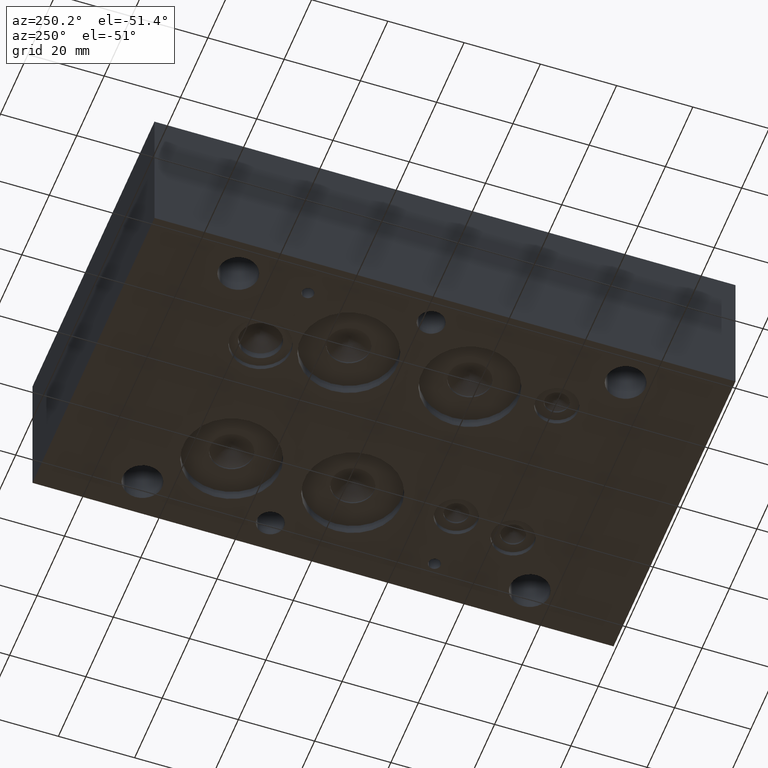
[diagram: clean part render]
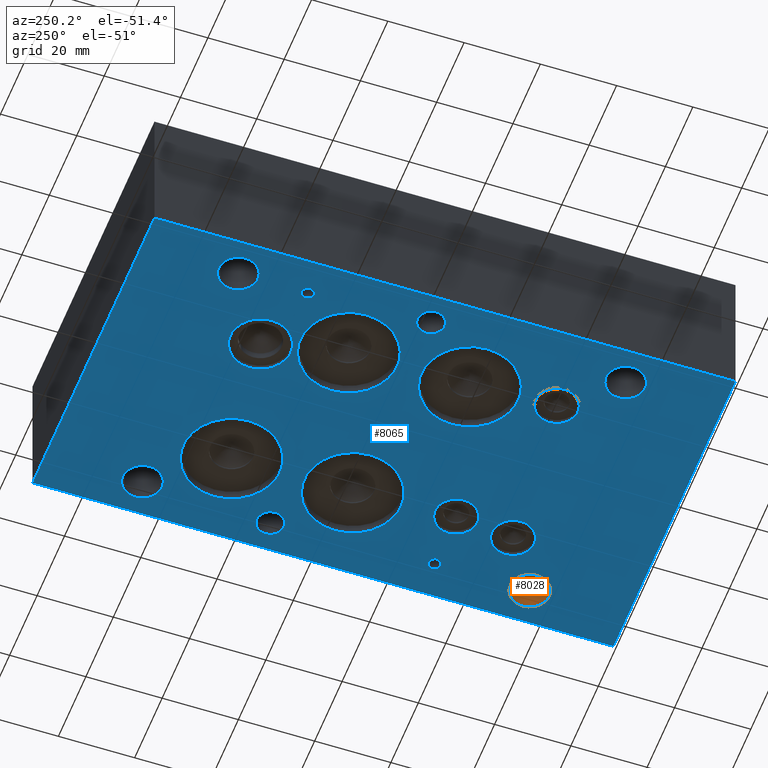
[diagram: same view with the hole feature highlighted: cylindrical wall and planar end face, labeled with their STEP entity ids]
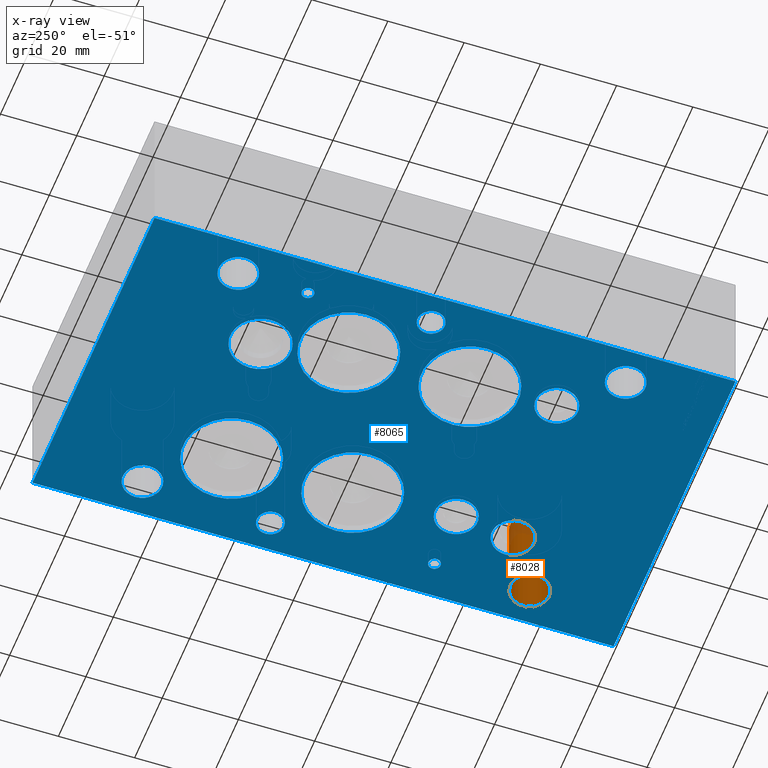
[diagram: x-ray of the same camera — body ghosted, the hole faces saturated]
A machine part, auxiliary view. The highlighted faces form one hole feature of diameter 10.3124 mm: the cylindrical wall (entity #8028, orange) and its adjacent planar end face (entity #8065, blue) — they share a circular edge in the B-rep.
The next image is the same camera in x-ray (body ghosted, the hole faces saturated) — the bore reads through the body.
Wall:
#61=CYLINDRICAL_SURFACE('',#8449,5.1562);
#131=CIRCLE('',#8446,5.1562);
#133=CIRCLE('',#8450,5.1562);
#859=FACE_OUTER_BOUND('',#1328,.T.);
#1328=EDGE_LOOP('',(#6863,#6864,#6865,#6866));
#2206=LINE('',#13283,#3044);
#3044=VECTOR('',#10059,5.1562);
#3754=VERTEX_POINT('',#13275);
#3756=VERTEX_POINT('',#13282);
#4808=EDGE_CURVE('',#3754,#3754,#131,.T.);
#4811=EDGE_CURVE('',#3754,#3756,#2206,.T.);
#4812=EDGE_CURVE('',#3756,#3756,#133,.T.);
#6863=ORIENTED_EDGE('',*,*,#4808,.T.);
#6864=ORIENTED_EDGE('',*,*,#4811,.T.);
#6865=ORIENTED_EDGE('',*,*,#4812,.F.);
#6866=ORIENTED_EDGE('',*,*,#4811,.F.);
#8028=ADVANCED_FACE('',(#859),#61,.F.);
#8446=AXIS2_PLACEMENT_3D('',#13276,#10050,#10051);
#8449=AXIS2_PLACEMENT_3D('',#13281,#10057,#10058);
#8450=AXIS2_PLACEMENT_3D('',#13284,#10060,#10061);
#10050=DIRECTION('center_axis',(0.,0.,1.));
#10051=DIRECTION('ref_axis',(1.,0.,0.));
#10057=DIRECTION('center_axis',(0.,0.,1.));
#10058=DIRECTION('ref_axis',(1.,0.,0.));
#10059=DIRECTION('',(0.,0.,-1.));
#10060=DIRECTION('center_axis',(0.,0.,1.));
#10061=DIRECTION('ref_axis',(1.,0.,0.));
#13275=CARTESIAN_POINT('',(74.1934,25.4,23.876));
#13276=CARTESIAN_POINT('Origin',(79.3496,25.4,23.876));
#13281=CARTESIAN_POINT('Origin',(79.3496,25.4,-142.400914125109));
#13282=CARTESIAN_POINT('',(74.1934,25.4,0.));
#13283=CARTESIAN_POINT('',(74.1934,25.4,-142.400914125109));
#13284=CARTESIAN_POINT('Origin',(79.3496,25.4,0.));
End face:
#84=CIRCLE('',#8355,7.9375);
#93=CIRCLE('',#8372,5.5626);
#95=CIRCLE('',#8376,5.5626);
#97=CIRCLE('',#8380,5.5626);
#108=CIRCLE('',#8403,12.7);
#110=CIRCLE('',#8407,12.7);
#112=CIRCLE('',#8411,12.7);
#114=CIRCLE('',#8415,12.7);
#117=CIRCLE('',#8421,1.5875);
#119=CIRCLE('',#8425,1.5875);
#120=CIRCLE('',#8427,3.5687);
#121=CIRCLE('',#8429,3.5687);
#125=CIRCLE('',#8436,5.1562);
#129=CIRCLE('',#8443,5.1562);
#133=CIRCLE('',#8450,5.1562);
#137=CIRCLE('',#8457,5.1562);
#457=FACE_BOUND('',#1387,.T.);
#458=FACE_BOUND('',#1388,.T.);
#459=FACE_BOUND('',#1389,.T.);
#460=FACE_BOUND('',#1390,.T.);
#461=FACE_BOUND('',#1391,.T.);
#462=FACE_BOUND('',#1392,.T.);
#463=FACE_BOUND('',#1393,.T.);
#464=FACE_BOUND('',#1394,.T.);
#465=FACE_BOUND('',#1395,.T.);
#466=FACE_BOUND('',#1396,.T.);
#467=FACE_BOUND('',#1397,.T.);
#468=FACE_BOUND('',#1398,.T.);
#469=FACE_BOUND('',#1399,.T.);
#470=FACE_BOUND('',#1400,.T.);
#471=FACE_BOUND('',#1401,.T.);
#472=FACE_BOUND('',#1402,.T.);
#896=FACE_OUTER_BOUND('',#1386,.T.);
#1386=EDGE_LOOP('',(#7011,#7012,#7013,#7014));
#1387=EDGE_LOOP('',(#7015));
#1388=EDGE_LOOP('',(#7016));
#1389=EDGE_LOOP('',(#7017));
#1390=EDGE_LOOP('',(#7018));
#1391=EDGE_LOOP('',(#7019));
#1392=EDGE_LOOP('',(#7020));
#1393=EDGE_LOOP('',(#7021));
#1394=EDGE_LOOP('',(#7022));
#1395=EDGE_LOOP('',(#7023));
#1396=EDGE_LOOP('',(#7024));
#1397=EDGE_LOOP('',(#7025));
#1398=EDGE_LOOP('',(#7026));
#1399=EDGE_LOOP('',(#7027));
#1400=EDGE_LOOP('',(#7028));
#1401=EDGE_LOOP('',(#7029));
#1402=EDGE_LOOP('',(#7030));
#1780=LINE('',#11137,#2618);
#2233=LINE('',#13418,#3071);
#2236=LINE('',#13424,#3074);
#2239=LINE('',#13429,#3077);
#2618=VECTOR('',#9165,10.);
#3071=VECTOR('',#10216,10.);
#3074=VECTOR('',#10221,10.);
#3077=VECTOR('',#10226,10.);
#3341=VERTEX_POINT('',#11135);
#3342=VERTEX_POINT('',#11136);
#3697=VERTEX_POINT('',#13093);
#3709=VERTEX_POINT('',#13129);
#3711=VERTEX_POINT('',#13136);
#3713=VERTEX_POINT('',#13143);
#3729=VERTEX_POINT('',#13193);
#3731=VERTEX_POINT('',#13200);
#3733=VERTEX_POINT('',#13207);
#3735=VERTEX_POINT('',#13214);
#3739=VERTEX_POINT('',#13226);
#3742=VERTEX_POINT('',#13235);
#3743=VERTEX_POINT('',#13239);
#3744=VERTEX_POINT('',#13243);
#3748=VERTEX_POINT('',#13256);
#3752=VERTEX_POINT('',#13269);
#3756=VERTEX_POINT('',#13282);
#3760=VERTEX_POINT('',#13295);
#3799=VERTEX_POINT('',#13417);
#3801=VERTEX_POINT('',#13423);
#4196=EDGE_CURVE('',#3341,#3342,#1780,.T.);
#4727=EDGE_CURVE('',#3697,#3697,#84,.T.);
#4743=EDGE_CURVE('',#3709,#3709,#93,.T.);
#4746=EDGE_CURVE('',#3711,#3711,#95,.T.);
#4749=EDGE_CURVE('',#3713,#3713,#97,.T.);
#4771=EDGE_CURVE('',#3729,#3729,#108,.T.);
#4774=EDGE_CURVE('',#3731,#3731,#110,.T.);
#4777=EDGE_CURVE('',#3733,#3733,#112,.T.);
#4780=EDGE_CURVE('',#3735,#3735,#114,.T.);
#4785=EDGE_CURVE('',#3739,#3739,#117,.T.);
#4789=EDGE_CURVE('',#3742,#3742,#119,.T.);
#4791=EDGE_CURVE('',#3743,#3743,#120,.T.);
#4793=EDGE_CURVE('',#3744,#3744,#121,.T.);
#4800=EDGE_CURVE('',#3748,#3748,#125,.T.);
#4806=EDGE_CURVE('',#3752,#3752,#129,.T.);
#4812=EDGE_CURVE('',#3756,#3756,#133,.T.);
#4818=EDGE_CURVE('',#3760,#3760,#137,.T.);
#4871=EDGE_CURVE('',#3799,#3341,#2233,.T.);
#4874=EDGE_CURVE('',#3801,#3799,#2236,.T.);
#4877=EDGE_CURVE('',#3342,#3801,#2239,.T.);
#7011=ORIENTED_EDGE('',*,*,#4196,.F.);
#7012=ORIENTED_EDGE('',*,*,#4871,.F.);
#7013=ORIENTED_EDGE('',*,*,#4874,.F.);
#7014=ORIENTED_EDGE('',*,*,#4877,.F.);
#7015=ORIENTED_EDGE('',*,*,#4727,.T.);
#7016=ORIENTED_EDGE('',*,*,#4743,.T.);
#7017=ORIENTED_EDGE('',*,*,#4746,.T.);
#7018=ORIENTED_EDGE('',*,*,#4749,.T.);
#7019=ORIENTED_EDGE('',*,*,#4771,.T.);
#7020=ORIENTED_EDGE('',*,*,#4774,.T.);
#7021=ORIENTED_EDGE('',*,*,#4777,.T.);
#7022=ORIENTED_EDGE('',*,*,#4780,.T.);
#7023=ORIENTED_EDGE('',*,*,#4785,.T.);
#7024=ORIENTED_EDGE('',*,*,#4789,.T.);
#7025=ORIENTED_EDGE('',*,*,#4791,.T.);
#7026=ORIENTED_EDGE('',*,*,#4793,.T.);
#7027=ORIENTED_EDGE('',*,*,#4800,.T.);
#7028=ORIENTED_EDGE('',*,*,#4806,.T.);
#7029=ORIENTED_EDGE('',*,*,#4812,.T.);
#7030=ORIENTED_EDGE('',*,*,#4818,.T.);
#7315=PLANE('',#8519);
#8065=ADVANCED_FACE('',(#896,#457,#458,#459,#460,#461,#462,#463,#464,#465,
#466,#467,#468,#469,#470,#471,#472),#7315,.F.);
#8355=AXIS2_PLACEMENT_3D('',#13094,#9834,#9835);
#8372=AXIS2_PLACEMENT_3D('',#13130,#9875,#9876);
#8376=AXIS2_PLACEMENT_3D('',#13137,#9884,#9885);
#8380=AXIS2_PLACEMENT_3D('',#13144,#9893,#9894);
#8403=AXIS2_PLACEMENT_3D('',#13194,#9950,#9951);
#8407=AXIS2_PLACEMENT_3D('',#13201,#9959,#9960);
#8411=AXIS2_PLACEMENT_3D('',#13208,#9968,#9969);
#8415=AXIS2_PLACEMENT_3D('',#13215,#9977,#9978);
#8421=AXIS2_PLACEMENT_3D('',#13227,#9991,#9992);
#8425=AXIS2_PLACEMENT_3D('',#13236,#10001,#10002);
#8427=AXIS2_PLACEMENT_3D('',#13240,#10006,#10007);
#8429=AXIS2_PLACEMENT_3D('',#13244,#10011,#10012);
#8436=AXIS2_PLACEMENT_3D('',#13258,#10028,#10029);
#8443=AXIS2_PLACEMENT_3D('',#13271,#10044,#10045);
#8450=AXIS2_PLACEMENT_3D('',#13284,#10060,#10061);
#8457=AXIS2_PLACEMENT_3D('',#13297,#10076,#10077);
#8519=AXIS2_PLACEMENT_3D('',#13433,#10232,#10233);
#9165=DIRECTION('',(1.,0.,0.));
#9834=DIRECTION('center_axis',(0.,0.,1.));
#9835=DIRECTION('ref_axis',(1.,0.,0.));
#9875=DIRECTION('center_axis',(0.,0.,1.));
#9876=DIRECTION('ref_axis',(1.,0.,0.));
#9884=DIRECTION('center_axis',(0.,0.,1.));
#9885=DIRECTION('ref_axis',(1.,0.,0.));
#9893=DIRECTION('center_axis',(0.,0.,1.));
#9894=DIRECTION('ref_axis',(1.,0.,0.));
#9950=DIRECTION('center_axis',(0.,0.,1.));
#9951=DIRECTION('ref_axis',(1.,0.,0.));
#9959=DIRECTION('center_axis',(0.,0.,1.));
#9960=DIRECTION('ref_axis',(1.,0.,0.));
#9968=DIRECTION('center_axis',(0.,0.,1.));
#9969=DIRECTION('ref_axis',(1.,0.,0.));
#9977=DIRECTION('center_axis',(0.,0.,1.));
#9978=DIRECTION('ref_axis',(1.,0.,0.));
#9991=DIRECTION('center_axis',(0.,0.,1.));
#9992=DIRECTION('ref_axis',(1.,0.,0.));
#10001=DIRECTION('center_axis',(0.,0.,1.));
#10002=DIRECTION('ref_axis',(1.,0.,0.));
#10006=DIRECTION('center_axis',(0.,0.,1.));
#10007=DIRECTION('ref_axis',(1.,0.,0.));
#10011=DIRECTION('center_axis',(0.,0.,1.));
#10012=DIRECTION('ref_axis',(1.,0.,0.));
#10028=DIRECTION('center_axis',(0.,0.,1.));
#10029=DIRECTION('ref_axis',(1.,0.,0.));
#10044=DIRECTION('center_axis',(0.,0.,1.));
#10045=DIRECTION('ref_axis',(1.,0.,0.));
#10060=DIRECTION('center_axis',(0.,0.,1.));
#10061=DIRECTION('ref_axis',(1.,0.,0.));
#10076=DIRECTION('center_axis',(0.,0.,1.));
#10077=DIRECTION('ref_axis',(1.,0.,0.));
#10216=DIRECTION('',(0.,-1.,0.));
#10221=DIRECTION('',(-1.,0.,0.));
#10226=DIRECTION('',(0.,1.,0.));
#10232=DIRECTION('center_axis',(0.,0.,1.));
#10233=DIRECTION('ref_axis',(1.,0.,0.));
#11135=CARTESIAN_POINT('',(0.,0.,0.));
#11136=CARTESIAN_POINT('',(88.9,0.,0.));
#11137=CARTESIAN_POINT('',(0.,0.,0.));
#13093=CARTESIAN_POINT('',(20.6375,114.3,0.));
#13094=CARTESIAN_POINT('Origin',(28.575,114.3,0.));
#13129=CARTESIAN_POINT('',(16.637,38.8874,0.));
#13130=CARTESIAN_POINT('Origin',(22.1996,38.8874,0.));
#13136=CARTESIAN_POINT('',(57.9374,50.3936,0.));
#13137=CARTESIAN_POINT('Origin',(63.5,50.3936,0.));
#13143=CARTESIAN_POINT('',(59.5249,34.925,0.));
#13144=CARTESIAN_POINT('Origin',(65.0875,34.925,0.));
#13193=CARTESIAN_POINT('',(11.0998,92.8624,0.));
#13194=CARTESIAN_POINT('Origin',(23.7998,92.8624,0.));
#13200=CARTESIAN_POINT('',(52.3748,76.9874,0.));
#13201=CARTESIAN_POINT('Origin',(65.0748,76.9874,0.));
#13207=CARTESIAN_POINT('',(52.3748,108.7374,0.));
#13208=CARTESIAN_POINT('Origin',(65.0748,108.7374,0.));
#13214=CARTESIAN_POINT('',(11.0998,61.1124,0.));
#13215=CARTESIAN_POINT('Origin',(23.7998,61.1124,0.));
#13226=CARTESIAN_POINT('',(7.9121,108.7374,0.));
#13227=CARTESIAN_POINT('Origin',(9.4996,108.7374,0.));
#13235=CARTESIAN_POINT('',(77.7621,50.3936,0.));
#13236=CARTESIAN_POINT('Origin',(79.3496,50.3936,0.));
#13239=CARTESIAN_POINT('',(4.3561,76.9874,0.));
#13240=CARTESIAN_POINT('Origin',(7.9248,76.9874,0.));
#13243=CARTESIAN_POINT('',(77.3811,92.8624,0.));
#13244=CARTESIAN_POINT('Origin',(80.9498,92.8624,0.));
#13256=CARTESIAN_POINT('',(4.3434,127.,0.));
#13258=CARTESIAN_POINT('Origin',(9.4996,127.,0.));
#13269=CARTESIAN_POINT('',(4.3434,25.4,0.));
#13271=CARTESIAN_POINT('Origin',(9.4996,25.4,0.));
#13282=CARTESIAN_POINT('',(74.1934,25.4,0.));
#13284=CARTESIAN_POINT('Origin',(79.3496,25.4,0.));
#13295=CARTESIAN_POINT('',(74.1934,127.,0.));
#13297=CARTESIAN_POINT('Origin',(79.3496,127.,0.));
#13417=CARTESIAN_POINT('',(0.,152.4,0.));
#13418=CARTESIAN_POINT('',(0.,152.4,0.));
#13423=CARTESIAN_POINT('',(88.9,152.4,0.));
#13424=CARTESIAN_POINT('',(88.9,152.4,0.));
#13429=CARTESIAN_POINT('',(88.9,0.,0.));
#13433=CARTESIAN_POINT('Origin',(44.45,76.2,0.));